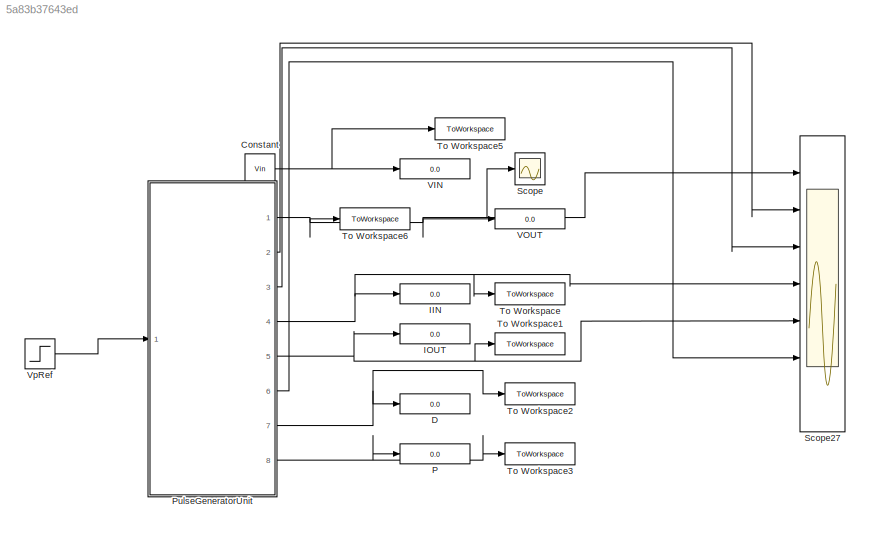
MODEL slx_5a83b37643ed
KIND model
CONFIG AbsTol = 1e-3
CONFIG EnableMultiTasking = on
CONFIG FixedStep = auto
CONFIG MaxStep = 1e-5
CONFIG MinStep = auto
CONFIG RelTol = 1e-3
CONFIG SampleTimeConstraint = Unconstrained
CONFIG SolverName = ode23tb
CONFIG StartTime = 0.0
CONFIG StopTime = Ts
BLOCK [Constant] Constant
  Value = Vin
BLOCK [Display] D
  Decimation = 1
  Ports = [1]
BLOCK [Display] IIN
  Decimation = 1
  Ports = [1]
BLOCK [Display] IOUT
  Decimation = 1
  Ports = [1]
BLOCK [Display] P
  Decimation = 1
  Ports = [1]
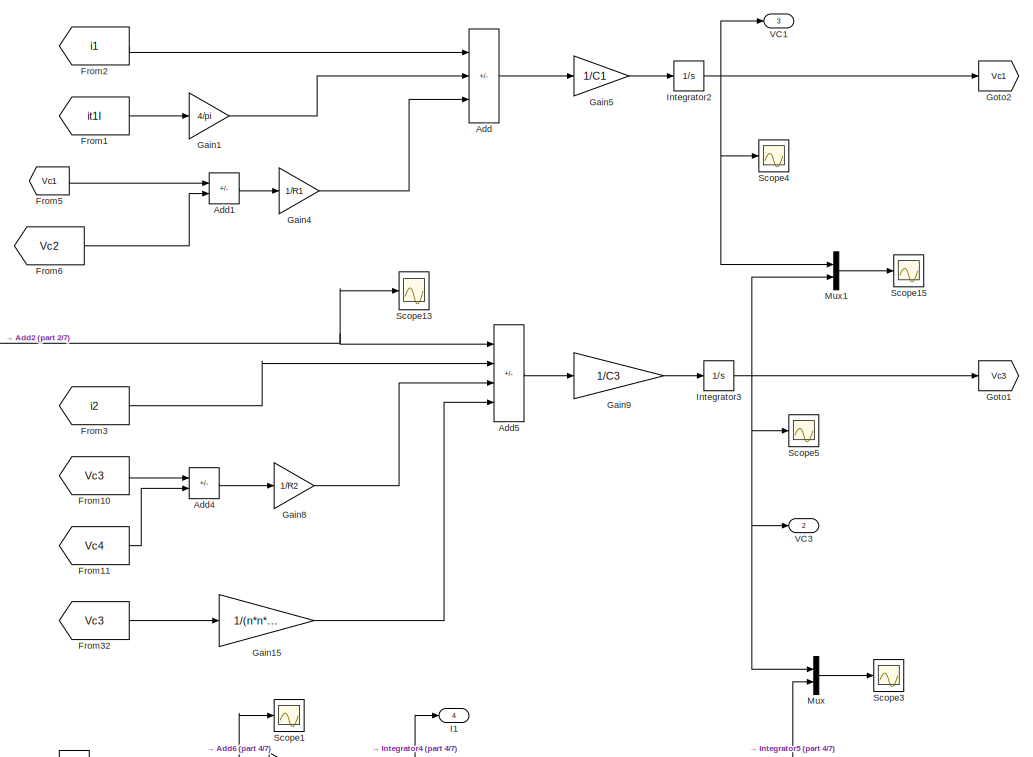
[diagram: PulseGeneratorUnit - part 1/7, top right region]
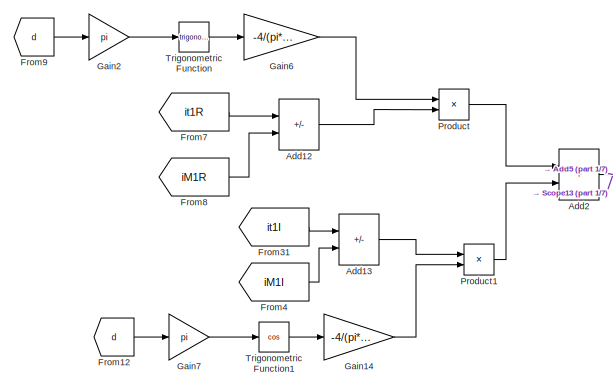
[diagram: PulseGeneratorUnit - part 2/7, top center region]
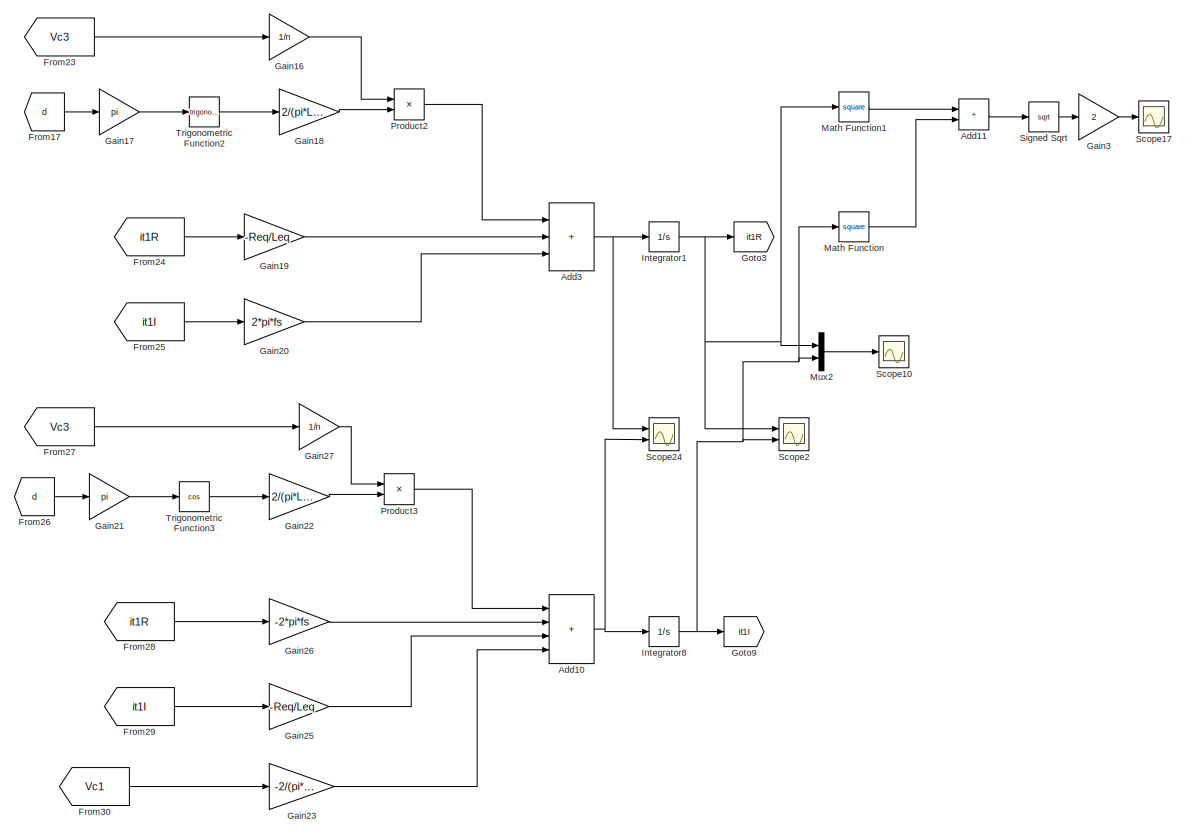
[diagram: PulseGeneratorUnit - part 3/7, middle left region]
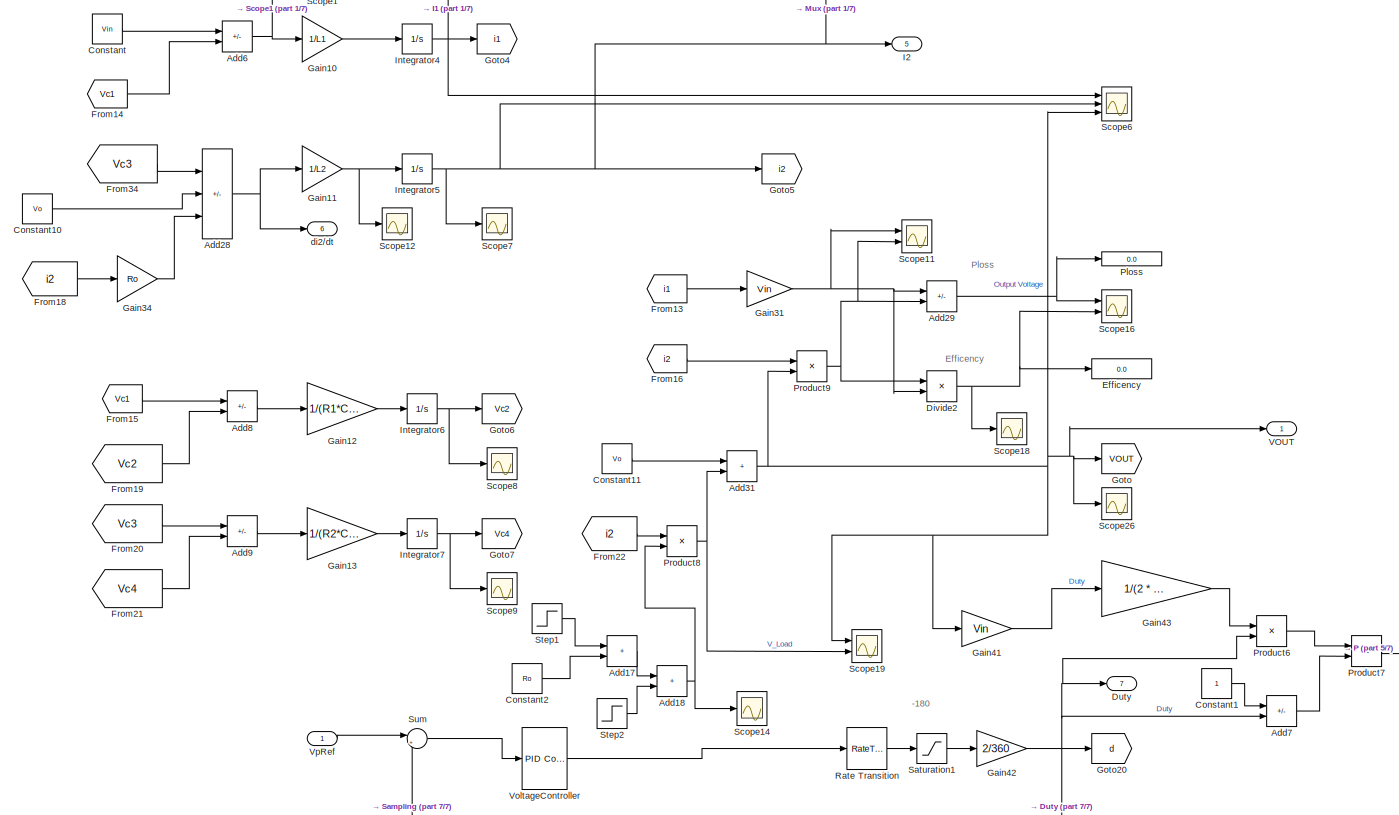
[diagram: PulseGeneratorUnit - part 4/7, middle right region]
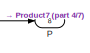
[diagram: PulseGeneratorUnit - part 5/7, bottom right region]
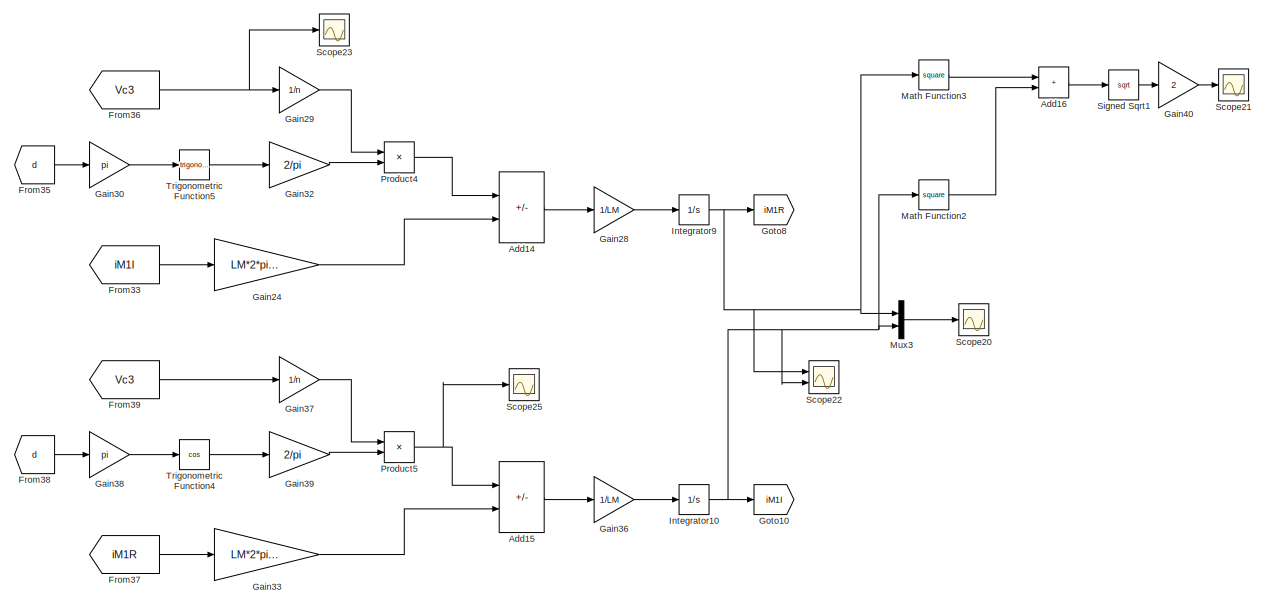
[diagram: PulseGeneratorUnit - part 6/7, bottom left region]
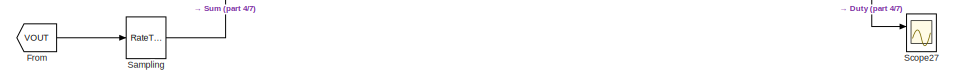
[diagram: PulseGeneratorUnit - part 7/7, bottom right region]
BLOCK [SubSystem] PulseGeneratorUnit
  Ports = [1, 8]
  RequestExecContextInheritance = off
BLOCK [Sum] PulseGeneratorUnit/Add
  IconShape = rectangular
  Inputs = ++-
  Ports = [3, 1]
BLOCK [Sum] PulseGeneratorUnit/Add1
  IconShape = rectangular
  Inputs = +-
  Ports = [2, 1]
BLOCK [Sum] PulseGeneratorUnit/Add10
  IconShape = rectangular
  Inputs = ++++
  Ports = [4, 1]
BLOCK [Sum] PulseGeneratorUnit/Add11
  IconShape = rectangular
  Ports = [2, 1]
BLOCK [Sum] PulseGeneratorUnit/Add12
  IconShape = rectangular
  Inputs = +-
  Ports = [2, 1]
BLOCK [Sum] PulseGeneratorUnit/Add13
  IconShape = rectangular
  Inputs = +-
  Ports = [2, 1]
BLOCK [Sum] PulseGeneratorUnit/Add14
  IconShape = rectangular
  Inputs = -+
  Ports = [2, 1]
BLOCK [Sum] PulseGeneratorUnit/Add15
  IconShape = rectangular
  Inputs = --
  Ports = [2, 1]
BLOCK [Sum] PulseGeneratorUnit/Add16
  IconShape = rectangular
  Ports = [2, 1]
BLOCK [Sum] PulseGeneratorUnit/Add17
  IconShape = rectangular
  Ports = [2, 1]
BLOCK [Sum] PulseGeneratorUnit/Add18
  IconShape = rectangular
  Ports = [2, 1]
BLOCK [Sum] PulseGeneratorUnit/Add2
  IconShape = rectangular
  Ports = [2, 1]
BLOCK [Sum] PulseGeneratorUnit/Add28
  IconShape = rectangular
  Inputs = +--
  Ports = [3, 1]
BLOCK [Sum] PulseGeneratorUnit/Add29
  IconShape = rectangular
  Inputs = +-
  Ports = [2, 1]
BLOCK [Sum] PulseGeneratorUnit/Add3
  IconShape = rectangular
  Inputs = +++
  Ports = [3, 1]
BLOCK [Sum] PulseGeneratorUnit/Add31
  IconShape = rectangular
  Ports = [2, 1]
BLOCK [Sum] PulseGeneratorUnit/Add4
  IconShape = rectangular
  Inputs = +-
  Ports = [2, 1]
BLOCK [Sum] PulseGeneratorUnit/Add5
  IconShape = rectangular
  Inputs = +---
  Ports = [4, 1]
BLOCK [Sum] PulseGeneratorUnit/Add6
  IconShape = rectangular
  Inputs = +-
  Ports = [2, 1]
BLOCK [Sum] PulseGeneratorUnit/Add7
  IconShape = rectangular
  Inputs = +-
  Ports = [2, 1]
BLOCK [Sum] PulseGeneratorUnit/Add8
  IconShape = rectangular
  Inputs = +-
  Ports = [2, 1]
BLOCK [Sum] PulseGeneratorUnit/Add9
  IconShape = rectangular
  Inputs = +-
  Ports = [2, 1]
BLOCK [Constant] PulseGeneratorUnit/Constant
  Value = Vin
BLOCK [Constant] PulseGeneratorUnit/Constant1
BLOCK [Constant] PulseGeneratorUnit/Constant10
  Value = Vo
BLOCK [Constant] PulseGeneratorUnit/Constant11
  Value = Vo
BLOCK [Constant] PulseGeneratorUnit/Constant2
  Value = Ro
BLOCK [Product] PulseGeneratorUnit/Divide2
  Inputs = */
  Ports = [2, 1]
BLOCK [Outport] PulseGeneratorUnit/Duty
  Port = 7
BLOCK [Display] PulseGeneratorUnit/Efficency
  Decimation = 1
  Ports = [1]
BLOCK [From] PulseGeneratorUnit/From
  GotoTag = VOUT
  TagVisibility = global
BLOCK [From] PulseGeneratorUnit/From1
  GotoTag = it1I
BLOCK [From] PulseGeneratorUnit/From10
  GotoTag = Vc3
BLOCK [From] PulseGeneratorUnit/From11
  GotoTag = Vc4
BLOCK [From] PulseGeneratorUnit/From12
  GotoTag = d
BLOCK [From] PulseGeneratorUnit/From13
  GotoTag = i1
BLOCK [From] PulseGeneratorUnit/From14
  GotoTag = Vc1
BLOCK [From] PulseGeneratorUnit/From15
  GotoTag = Vc1
BLOCK [From] PulseGeneratorUnit/From16
  GotoTag = i2
BLOCK [From] PulseGeneratorUnit/From17
  GotoTag = d
BLOCK [From] PulseGeneratorUnit/From18
  GotoTag = i2
BLOCK [From] PulseGeneratorUnit/From19
  GotoTag = Vc2
BLOCK [From] PulseGeneratorUnit/From2
  GotoTag = i1
BLOCK [From] PulseGeneratorUnit/From20
  GotoTag = Vc3
BLOCK [From] PulseGeneratorUnit/From21
  GotoTag = Vc4
BLOCK [From] PulseGeneratorUnit/From22
  GotoTag = i2
BLOCK [From] PulseGeneratorUnit/From23
  GotoTag = Vc3
BLOCK [From] PulseGeneratorUnit/From24
  GotoTag = it1R
BLOCK [From] PulseGeneratorUnit/From25
  GotoTag = it1I
BLOCK [From] PulseGeneratorUnit/From26
  GotoTag = d
BLOCK [From] PulseGeneratorUnit/From27
  GotoTag = Vc3
BLOCK [From] PulseGeneratorUnit/From28
  GotoTag = it1R
BLOCK [From] PulseGeneratorUnit/From29
  GotoTag = it1I
BLOCK [From] PulseGeneratorUnit/From3
  GotoTag = i2
BLOCK [From] PulseGeneratorUnit/From30
  GotoTag = Vc1
BLOCK [From] PulseGeneratorUnit/From31
  GotoTag = it1I
BLOCK [From] PulseGeneratorUnit/From32
  GotoTag = Vc3
BLOCK [From] PulseGeneratorUnit/From33
  GotoTag = iM1I
BLOCK [From] PulseGeneratorUnit/From34
  GotoTag = Vc3
BLOCK [From] PulseGeneratorUnit/From35
  GotoTag = d
BLOCK [From] PulseGeneratorUnit/From36
  GotoTag = Vc3
BLOCK [From] PulseGeneratorUnit/From37
  GotoTag = iM1R
BLOCK [From] PulseGeneratorUnit/From38
  GotoTag = d
BLOCK [From] PulseGeneratorUnit/From39
  GotoTag = Vc3
BLOCK [From] PulseGeneratorUnit/From4
  GotoTag = iM1I
BLOCK [From] PulseGeneratorUnit/From5
  GotoTag = Vc1
BLOCK [From] PulseGeneratorUnit/From6
  GotoTag = Vc2
BLOCK [From] PulseGeneratorUnit/From7
  GotoTag = it1R
BLOCK [From] PulseGeneratorUnit/From8
  GotoTag = iM1R
BLOCK [From] PulseGeneratorUnit/From9
  GotoTag = d
BLOCK [Gain] PulseGeneratorUnit/Gain1
  Gain = 4/pi
BLOCK [Gain] PulseGeneratorUnit/Gain10
  Gain = 1/L1
BLOCK [Gain] PulseGeneratorUnit/Gain11
  Gain = 1/L2
BLOCK [Gain] PulseGeneratorUnit/Gain12
  Gain = 1/(R1*C2)
BLOCK [Gain] PulseGeneratorUnit/Gain13
  Gain = 1/(R2*C4)
BLOCK [Gain] PulseGeneratorUnit/Gain14
  Gain = -4/(pi*n)
BLOCK [Gain] PulseGeneratorUnit/Gain15
  Gain = 1/(n*n*RM)
BLOCK [Gain] PulseGeneratorUnit/Gain16
  Gain = 1/n
BLOCK [Gain] PulseGeneratorUnit/Gain17
  Gain = pi
BLOCK [Gain] PulseGeneratorUnit/Gain18
  Gain = 2/(pi*Leq)
BLOCK [Gain] PulseGeneratorUnit/Gain19
  Gain = -Req/Leq
BLOCK [Gain] PulseGeneratorUnit/Gain2
  Gain = pi
BLOCK [Gain] PulseGeneratorUnit/Gain20
  Gain = 2*pi*fs
BLOCK [Gain] PulseGeneratorUnit/Gain21
  Gain = pi
BLOCK [Gain] PulseGeneratorUnit/Gain22
  Gain = 2/(pi*Leq)
BLOCK [Gain] PulseGeneratorUnit/Gain23
  Gain = -2/(pi*Leq)
BLOCK [Gain] PulseGeneratorUnit/Gain24
  Gain = LM*2*pi*fs
BLOCK [Gain] PulseGeneratorUnit/Gain25
  Gain = -Req/Leq
BLOCK [Gain] PulseGeneratorUnit/Gain26
  Gain = -2*pi*fs
BLOCK [Gain] PulseGeneratorUnit/Gain27
  Gain = 1/n
BLOCK [Gain] PulseGeneratorUnit/Gain28
  Gain = 1/LM
BLOCK [Gain] PulseGeneratorUnit/Gain29
  Gain = 1/n
BLOCK [Gain] PulseGeneratorUnit/Gain3
  Gain = 2
BLOCK [Gain] PulseGeneratorUnit/Gain30
  Gain = pi
BLOCK [Gain] PulseGeneratorUnit/Gain31
  Gain = Vin
BLOCK [Gain] PulseGeneratorUnit/Gain32
  Gain = 2/pi
BLOCK [Gain] PulseGeneratorUnit/Gain33
  Gain = LM*2*pi*fs
BLOCK [Gain] PulseGeneratorUnit/Gain34
  Gain = Ro
BLOCK [Gain] PulseGeneratorUnit/Gain36
  Gain = 1/LM
BLOCK [Gain] PulseGeneratorUnit/Gain37
  Gain = 1/n
BLOCK [Gain] PulseGeneratorUnit/Gain38
  Gain = pi
BLOCK [Gain] PulseGeneratorUnit/Gain39
  Gain = 2/pi
BLOCK [Gain] PulseGeneratorUnit/Gain4
  Gain = 1/R1
BLOCK [Gain] PulseGeneratorUnit/Gain40
  Gain = 2
BLOCK [Gain] PulseGeneratorUnit/Gain41
  Gain = Vin
BLOCK [Gain] PulseGeneratorUnit/Gain42
  Gain = 2/360
BLOCK [Gain] PulseGeneratorUnit/Gain43
  Gain = 1/(2 * n * fs * Leq)
BLOCK [Gain] PulseGeneratorUnit/Gain5
  Gain = 1/C1
BLOCK [Gain] PulseGeneratorUnit/Gain6
  Gain = -4/(pi*n)
BLOCK [Gain] PulseGeneratorUnit/Gain7
  Gain = pi
BLOCK [Gain] PulseGeneratorUnit/Gain8
  Gain = 1/R2
BLOCK [Gain] PulseGeneratorUnit/Gain9
  Gain = 1/C3
BLOCK [Goto] PulseGeneratorUnit/Goto
  GotoTag = VOUT
  TagVisibility = global
BLOCK [Goto] PulseGeneratorUnit/Goto1
  GotoTag = Vc3
BLOCK [Goto] PulseGeneratorUnit/Goto10
  GotoTag = iM1I
BLOCK [Goto] PulseGeneratorUnit/Goto2
  GotoTag = Vc1
BLOCK [Goto] PulseGeneratorUnit/Goto20
  GotoTag = d
BLOCK [Goto] PulseGeneratorUnit/Goto3
  GotoTag = it1R
BLOCK [Goto] PulseGeneratorUnit/Goto4
  GotoTag = i1
BLOCK [Goto] PulseGeneratorUnit/Goto5
  GotoTag = i2
BLOCK [Goto] PulseGeneratorUnit/Goto6
  GotoTag = Vc2
BLOCK [Goto] PulseGeneratorUnit/Goto7
  GotoTag = Vc4
BLOCK [Goto] PulseGeneratorUnit/Goto8
  GotoTag = iM1R
BLOCK [Goto] PulseGeneratorUnit/Goto9
  GotoTag = it1I
BLOCK [Outport] PulseGeneratorUnit/I1
  Port = 4
BLOCK [Outport] PulseGeneratorUnit/I2
  Port = 5
BLOCK [Integrator] PulseGeneratorUnit/Integrator1
  Ports = [1, 1]
BLOCK [Integrator] PulseGeneratorUnit/Integrator10
  Ports = [1, 1]
BLOCK [Integrator] PulseGeneratorUnit/Integrator2
  InitialCondition = Vin
  Ports = [1, 1]
BLOCK [Integrator] PulseGeneratorUnit/Integrator3
  InitialCondition = Vo
  Ports = [1, 1]
BLOCK [Integrator] PulseGeneratorUnit/Integrator4
  Ports = [1, 1]
BLOCK [Integrator] PulseGeneratorUnit/Integrator5
  Ports = [1, 1]
BLOCK [Integrator] PulseGeneratorUnit/Integrator6
  InitialCondition = Vin
  Ports = [1, 1]
BLOCK [Integrator] PulseGeneratorUnit/Integrator7
  InitialCondition = Vo
  Ports = [1, 1]
BLOCK [Integrator] PulseGeneratorUnit/Integrator8
  Ports = [1, 1]
BLOCK [Integrator] PulseGeneratorUnit/Integrator9
  Ports = [1, 1]
BLOCK [Math] PulseGeneratorUnit/Math Function
  Operator = square
  Ports = [1, 1]
  SignedPower = on
BLOCK [Math] PulseGeneratorUnit/Math Function1
  Operator = square
  Ports = [1, 1]
  SignedPower = on
BLOCK [Math] PulseGeneratorUnit/Math Function2
  Operator = square
  Ports = [1, 1]
  SignedPower = on
BLOCK [Math] PulseGeneratorUnit/Math Function3
  Operator = square
  Ports = [1, 1]
  SignedPower = on
BLOCK [Mux] PulseGeneratorUnit/Mux
  DisplayOption = bar
  Inputs = 2
  Ports = [2, 1]
BLOCK [Mux] PulseGeneratorUnit/Mux1
  DisplayOption = bar
  Inputs = 2
  Ports = [2, 1]
BLOCK [Mux] PulseGeneratorUnit/Mux2
  DisplayOption = bar
  Inputs = 2
  Ports = [2, 1]
BLOCK [Mux] PulseGeneratorUnit/Mux3
  DisplayOption = bar
  Inputs = 2
  Ports = [2, 1]
BLOCK [Outport] PulseGeneratorUnit/P
  Port = 8
BLOCK [Display] PulseGeneratorUnit/Ploss
  Decimation = 1
  Ports = [1]
BLOCK [Product] PulseGeneratorUnit/Product
  Ports = [2, 1]
  RndMeth = Zero
BLOCK [Product] PulseGeneratorUnit/Product1
  Ports = [2, 1]
  RndMeth = Zero
BLOCK [Product] PulseGeneratorUnit/Product2
  Ports = [2, 1]
  RndMeth = Zero
BLOCK [Product] PulseGeneratorUnit/Product3
  Ports = [2, 1]
  RndMeth = Zero
BLOCK [Product] PulseGeneratorUnit/Product4
  Ports = [2, 1]
  RndMeth = Zero
BLOCK [Product] PulseGeneratorUnit/Product5
  Ports = [2, 1]
  RndMeth = Zero
BLOCK [Product] PulseGeneratorUnit/Product6
  Ports = [2, 1]
  RndMeth = Zero
BLOCK [Product] PulseGeneratorUnit/Product7
  Ports = [2, 1]
  RndMeth = Zero
BLOCK [Product] PulseGeneratorUnit/Product8
  Ports = [2, 1]
  RndMeth = Zero
BLOCK [Product] PulseGeneratorUnit/Product9
  Ports = [2, 1]
  RndMeth = Zero
BLOCK [RateTransition] PulseGeneratorUnit/Rate Transition
BLOCK [RateTransition] PulseGeneratorUnit/Sampling
BLOCK [Saturate] PulseGeneratorUnit/Saturation1
  LowerLimit = -180
  UpperLimit = 180
BLOCK [Scope] PulseGeneratorUnit/Scope1
  Floating = off
  NumInputPorts = 1
  Ports = [1]
  ScopeSpecificationString = Simulink.scopes.TimeScopeBlockCfg('CurrentConfiguration', extmgr.ConfigurationSet(extmgr.Configuration('Core','General UI',true),extmgr.Configuration('Core','Source UI',true),extmgr.Configuration('Sources','WiredSimulink',true,'DataLoggingSaveFormat','StructureWithTime','DataLoggingDecimation','1','DataLoggingDecimateData',true,'DataLoggingVariableName','ScopeData2'),extmgr.Configuration('Visuals'...<+876ch>
BLOCK [Scope] PulseGeneratorUnit/Scope10
  Floating = off
  NumInputPorts = 1
  Ports = [1]
  ScopeSpecificationString = Simulink.scopes.TimeScopeBlockCfg('CurrentConfiguration', extmgr.ConfigurationSet(extmgr.Configuration('Core','General UI',true),extmgr.Configuration('Core','Source UI',true),extmgr.Configuration('Sources','WiredSimulink',true,'DataLoggingVariableName','ScopeData4','DataLoggingSaveFormat','StructureWithTime','DataLoggingDecimation','1','DataLoggingDecimateData',true),extmgr.Configuration('Visuals'...<+877ch>
BLOCK [Scope] PulseGeneratorUnit/Scope11
  Floating = off
  NumInputPorts = 2
  Ports = [2]
  ScopeSpecificationString = Simulink.scopes.TimeScopeBlockCfg('CurrentConfiguration', extmgr.ConfigurationSet(extmgr.Configuration('Core','General UI',true),extmgr.Configuration('Core','Source UI',true),extmgr.Configuration('Sources','WiredSimulink',true,'DataLoggingVariableName','ScopeData5','DataLoggingSaveFormat','StructureWithTime','DataLoggingDecimation','1','DataLoggingDecimateData',true),extmgr.Configuration('Visuals'...<+2326ch>
BLOCK [Scope] PulseGeneratorUnit/Scope12
  Floating = off
  NumInputPorts = 1
  Ports = [1]
  ScopeSpecificationString = Simulink.scopes.TimeScopeBlockCfg('CurrentConfiguration', extmgr.ConfigurationSet(extmgr.Configuration('Core','General UI',true),extmgr.Configuration('Core','Source UI',true),extmgr.Configuration('Sources','WiredSimulink',true,'DataLoggingVariableName','ScopeData6','DataLoggingSaveFormat','StructureWithTime','DataLoggingDecimation','1','DataLoggingDecimateData',true),extmgr.Configuration('Visuals'...<+1683ch>
BLOCK [Scope] PulseGeneratorUnit/Scope13
  Floating = off
  NumInputPorts = 1
  Ports = [1]
  ScopeSpecificationString = Simulink.scopes.TimeScopeBlockCfg('CurrentConfiguration', extmgr.ConfigurationSet(extmgr.Configuration('Core','General UI',true),extmgr.Configuration('Core','Source UI',true),extmgr.Configuration('Sources','WiredSimulink',true,'DataLoggingVariableName','ScopeData7','DataLoggingSaveFormat','StructureWithTime','DataLoggingDecimation','1','DataLoggingDecimateData',true),extmgr.Configuration('Visuals'...<+876ch>
BLOCK [Scope] PulseGeneratorUnit/Scope14
  Floating = off
  NumInputPorts = 1
  Ports = [1]
  ScopeSpecificationString = Simulink.scopes.TimeScopeBlockCfg('CurrentConfiguration', extmgr.ConfigurationSet(extmgr.Configuration('Core','General UI',true),extmgr.Configuration('Core','Source UI',true),extmgr.Configuration('Sources','WiredSimulink',true,'DataLoggingVariableName','ScopeData1','DataLoggingSaveFormat','StructureWithTime','DataLoggingDecimation','1','DataLoggingDecimateData',true),extmgr.Configuration('Visuals'...<+2025ch>
BLOCK [Scope] PulseGeneratorUnit/Scope15
  Floating = off
  NumInputPorts = 1
  Ports = [1]
  ScopeSpecificationString = Simulink.scopes.TimeScopeBlockCfg('CurrentConfiguration', extmgr.ConfigurationSet(extmgr.Configuration('Core','General UI',true),extmgr.Configuration('Core','Source UI',true),extmgr.Configuration('Sources','WiredSimulink',true,'DataLoggingVariableName','ScopeData8','DataLoggingSaveFormat','StructureWithTime','DataLoggingDecimation','1','DataLoggingDecimateData',true),extmgr.Configuration('Visuals'...<+876ch>
BLOCK [Scope] PulseGeneratorUnit/Scope16
  Floating = off
  NumInputPorts = 2
  Ports = [2]
  ScopeSpecificationString = Simulink.scopes.TimeScopeBlockCfg('CurrentConfiguration', extmgr.ConfigurationSet(extmgr.Configuration('Core','General UI',true),extmgr.Configuration('Core','Source UI',true),extmgr.Configuration('Sources','WiredSimulink',true,'DataLoggingVariableName','ScopeData17','DataLoggingSaveFormat','StructureWithTime','DataLoggingDecimation','1','DataLoggingDecimateData',true),extmgr.Configuration('Visuals...<+2335ch>
BLOCK [Scope] PulseGeneratorUnit/Scope17
  Floating = off
  NumInputPorts = 1
  Ports = [1]
  ScopeSpecificationString = Simulink.scopes.TimeScopeBlockCfg('CurrentConfiguration', extmgr.ConfigurationSet(extmgr.Configuration('Core','General UI',true),extmgr.Configuration('Core','Source UI',true),extmgr.Configuration('Sources','WiredSimulink',true,'DataLoggingVariableName','ScopeData9','DataLoggingSaveFormat','StructureWithTime','DataLoggingDecimation','1','DataLoggingDecimateData',true),extmgr.Configuration('Visuals'...<+878ch>
BLOCK [Scope] PulseGeneratorUnit/Scope18
  Floating = off
  NumInputPorts = 1
  Ports = [1]
  ScopeSpecificationString = Simulink.scopes.TimeScopeBlockCfg('CurrentConfiguration', extmgr.ConfigurationSet(extmgr.Configuration('Core','General UI',true),extmgr.Configuration('Core','Source UI',true),extmgr.Configuration('Sources','WiredSimulink',true,'DataLoggingVariableName','ScopeData10','DataLoggingSaveFormat','StructureWithTime','DataLoggingDecimation','1','DataLoggingDecimateData',true),extmgr.Configuration('Visuals...<+1647ch>
BLOCK [Scope] PulseGeneratorUnit/Scope19
  Floating = off
  NumInputPorts = 2
  Ports = [2]
  ScopeSpecificationString = Simulink.scopes.TimeScopeBlockCfg('CurrentConfiguration', extmgr.ConfigurationSet(extmgr.Configuration('Core','General UI',true),extmgr.Configuration('Core','Source UI',true),extmgr.Configuration('Sources','WiredSimulink',true,'DataLoggingVariableName','ScopeData11','DataLoggingSaveFormat','StructureWithTime','DataLoggingDecimation','1','DataLoggingDecimateData',true),extmgr.Configuration('Visuals...<+2079ch>
BLOCK [Scope] PulseGeneratorUnit/Scope2
  Floating = off
  NumInputPorts = 2
  Ports = [2]
  ScopeSpecificationString = Simulink.scopes.TimeScopeBlockCfg('CurrentConfiguration', extmgr.ConfigurationSet(extmgr.Configuration('Core','General UI',true),extmgr.Configuration('Core','Source UI',true),extmgr.Configuration('Sources','WiredSimulink',true,'DataLoggingVariableName','ScopeData12','DataLoggingSaveFormat','StructureWithTime','DataLoggingDecimation','1','DataLoggingDecimateData',true),extmgr.Configuration('Visuals...<+2303ch>
BLOCK [Scope] PulseGeneratorUnit/Scope20
  Floating = off
  NumInputPorts = 1
  Ports = [1]
  ScopeSpecificationString = Simulink.scopes.TimeScopeBlockCfg('CurrentConfiguration', extmgr.ConfigurationSet(extmgr.Configuration('Core','General UI',true),extmgr.Configuration('Core','Source UI',true),extmgr.Configuration('Sources','WiredSimulink',true,'DataLoggingVariableName','ScopeData13','DataLoggingSaveFormat','StructureWithTime','DataLoggingDecimation','1','DataLoggingDecimateData',true),extmgr.Configuration('Visuals...<+878ch>
BLOCK [Scope] PulseGeneratorUnit/Scope21
  Floating = off
  NumInputPorts = 1
  Ports = [1]
  ScopeSpecificationString = Simulink.scopes.TimeScopeBlockCfg('CurrentConfiguration', extmgr.ConfigurationSet(extmgr.Configuration('Core','General UI',true),extmgr.Configuration('Core','Source UI',true),extmgr.Configuration('Sources','WiredSimulink',true,'DataLoggingVariableName','ScopeData14','DataLoggingSaveFormat','StructureWithTime','DataLoggingDecimation','1','DataLoggingDecimateData',true),extmgr.Configuration('Visuals...<+878ch>
BLOCK [Scope] PulseGeneratorUnit/Scope22
  Floating = off
  NumInputPorts = 2
  Ports = [2]
  ScopeSpecificationString = Simulink.scopes.TimeScopeBlockCfg('CurrentConfiguration', extmgr.ConfigurationSet(extmgr.Configuration('Core','General UI',true),extmgr.Configuration('Core','Source UI',true),extmgr.Configuration('Sources','WiredSimulink',true,'DataLoggingVariableName','ScopeData15','DataLoggingSaveFormat','StructureWithTime','DataLoggingDecimation','1','DataLoggingDecimateData',true),extmgr.Configuration('Visuals...<+2303ch>
BLOCK [Scope] PulseGeneratorUnit/Scope23
  Floating = off
  NumInputPorts = 1
  Ports = [1]
  ScopeSpecificationString = Simulink.scopes.TimeScopeBlockCfg('CurrentConfiguration', extmgr.ConfigurationSet(extmgr.Configuration('Core','General UI',true),extmgr.Configuration('Core','Source UI',true),extmgr.Configuration('Sources','WiredSimulink',true,'DataLoggingVariableName','ScopeData16','DataLoggingSaveFormat','StructureWithTime','DataLoggingDecimation','1','DataLoggingDecimateData',true),extmgr.Configuration('Visuals...<+1617ch>
BLOCK [Scope] PulseGeneratorUnit/Scope24
  Floating = off
  NumInputPorts = 2
  Ports = [2]
  ScopeSpecificationString = Simulink.scopes.TimeScopeBlockCfg('CurrentConfiguration', extmgr.ConfigurationSet(extmgr.Configuration('Core','General UI',true),extmgr.Configuration('Core','Source UI',true),extmgr.Configuration('Sources','WiredSimulink',true,'DataLoggingVariableName','ScopeData18','DataLoggingSaveFormat','StructureWithTime','DataLoggingDecimation','1','DataLoggingDecimateData',true),extmgr.Configuration('Visuals...<+2303ch>
BLOCK [Scope] PulseGeneratorUnit/Scope25
  Floating = off
  NumInputPorts = 1
  Ports = [1]
  ScopeSpecificationString = Simulink.scopes.TimeScopeBlockCfg('CurrentConfiguration', extmgr.ConfigurationSet(extmgr.Configuration('Core','General UI',true),extmgr.Configuration('Core','Source UI',true),extmgr.Configuration('Sources','WiredSimulink',true,'DataLoggingVariableName','ScopeData19','DataLoggingSaveFormat','StructureWithTime','DataLoggingDecimation','1','DataLoggingDecimateData',true),extmgr.Configuration('Visuals...<+878ch>
BLOCK [Scope] PulseGeneratorUnit/Scope26
  Floating = off
  NumInputPorts = 1
  Ports = [1]
  ScopeSpecificationString = Simulink.scopes.TimeScopeBlockCfg('CurrentConfiguration', extmgr.ConfigurationSet(extmgr.Configuration('Core','General UI',true),extmgr.Configuration('Core','Source UI',true),extmgr.Configuration('Sources','WiredSimulink',true,'DataLoggingVariableName','ScopeData2','DataLoggingSaveFormat','StructureWithTime','DataLoggingDecimation','1','DataLoggingDecimateData',true),extmgr.Configuration('Visuals'...<+1690ch>
BLOCK [Scope] PulseGeneratorUnit/Scope27
  Floating = off
  NumInputPorts = 2
  Ports = [2]
  ScopeSpecificationString = Simulink.scopes.TimeScopeBlockCfg('CurrentConfiguration', extmgr.ConfigurationSet(extmgr.Configuration('Core','General UI',true),extmgr.Configuration('Core','Source UI',true),extmgr.Configuration('Sources','WiredSimulink',true,'DataLoggingVariableName','ScopeData3','DataLoggingSaveFormat','StructureWithTime','DataLoggingDecimation','1','DataLoggingDecimateData',true),extmgr.Configuration('Visuals'...<+2332ch>
BLOCK [Scope] PulseGeneratorUnit/Scope3
  Floating = off
  NumInputPorts = 1
  Ports = [1]
  ScopeSpecificationString = Simulink.scopes.TimeScopeBlockCfg('CurrentConfiguration', extmgr.ConfigurationSet(extmgr.Configuration('Core','General UI',true),extmgr.Configuration('Core','Source UI',true),extmgr.Configuration('Sources','WiredSimulink',true,'DataLoggingVariableName','ScopeData20','DataLoggingSaveFormat','StructureWithTime','DataLoggingDecimation','1','DataLoggingDecimateData',true),extmgr.Configuration('Visuals...<+879ch>
BLOCK [Scope] PulseGeneratorUnit/Scope4
  Floating = off
  NumInputPorts = 1
  Ports = [1]
  ScopeSpecificationString = Simulink.scopes.TimeScopeBlockCfg('CurrentConfiguration', extmgr.ConfigurationSet(extmgr.Configuration('Core','General UI',true),extmgr.Configuration('Core','Source UI',true),extmgr.Configuration('Sources','WiredSimulink',true,'DataLoggingVariableName','ScopeData21','DataLoggingSaveFormat','StructureWithTime','DataLoggingDecimation','1','DataLoggingDecimateData',true),extmgr.Configuration('Visuals...<+1708ch>
BLOCK [Scope] PulseGeneratorUnit/Scope5
  Floating = off
  NumInputPorts = 1
  Ports = [1]
  ScopeSpecificationString = Simulink.scopes.TimeScopeBlockCfg('CurrentConfiguration', extmgr.ConfigurationSet(extmgr.Configuration('Core','General UI',true),extmgr.Configuration('Core','Source UI',true),extmgr.Configuration('Sources','WiredSimulink',true,'DataLoggingVariableName','ScopeData22','DataLoggingSaveFormat','StructureWithTime','DataLoggingDecimation','1','DataLoggingDecimateData',true),extmgr.Configuration('Visuals...<+1702ch>
BLOCK [Scope] PulseGeneratorUnit/Scope6
  Floating = off
  NumInputPorts = 3
  Ports = [3]
  ScopeSpecificationString = Simulink.scopes.TimeScopeBlockCfg('CurrentConfiguration', extmgr.ConfigurationSet(extmgr.Configuration('Core','General UI',true),extmgr.Configuration('Core','Source UI',true),extmgr.Configuration('Sources','WiredSimulink',true,'DataLoggingVariableName','ScopeData23','DataLoggingSaveFormat','StructureWithTime','DataLoggingDecimation','1','DataLoggingDecimateData',true),extmgr.Configuration('Visuals...<+3018ch>
BLOCK [Scope] PulseGeneratorUnit/Scope7
  Floating = off
  NumInputPorts = 1
  Ports = [1]
  ScopeSpecificationString = Simulink.scopes.TimeScopeBlockCfg('CurrentConfiguration', extmgr.ConfigurationSet(extmgr.Configuration('Core','General UI',true),extmgr.Configuration('Core','Source UI',true),extmgr.Configuration('Sources','WiredSimulink',true,'DataLoggingVariableName','ScopeData24','DataLoggingSaveFormat','StructureWithTime','DataLoggingDecimation','1','DataLoggingDecimateData',true),extmgr.Configuration('Visuals...<+1771ch>
BLOCK [Scope] PulseGeneratorUnit/Scope8
  Floating = off
  NumInputPorts = 1
  Ports = [1]
  ScopeSpecificationString = Simulink.scopes.TimeScopeBlockCfg('CurrentConfiguration', extmgr.ConfigurationSet(extmgr.Configuration('Core','General UI',true),extmgr.Configuration('Core','Source UI',true),extmgr.Configuration('Sources','WiredSimulink',true,'DataLoggingVariableName','ScopeData25','DataLoggingSaveFormat','StructureWithTime','DataLoggingDecimation','1','DataLoggingDecimateData',true),extmgr.Configuration('Visuals...<+878ch>
BLOCK [Scope] PulseGeneratorUnit/Scope9
  Floating = off
  NumInputPorts = 1
  Ports = [1]
  ScopeSpecificationString = Simulink.scopes.TimeScopeBlockCfg('CurrentConfiguration', extmgr.ConfigurationSet(extmgr.Configuration('Core','General UI',true),extmgr.Configuration('Core','Source UI',true),extmgr.Configuration('Sources','WiredSimulink',true,'DataLoggingSaveFormat','StructureWithTime','DataLoggingDecimation','1','DataLoggingDecimateData',true),extmgr.Configuration('Visuals','Time Domain',true,'DisplayPropertyDef...<+837ch>
BLOCK [Sqrt] PulseGeneratorUnit/Signed Sqrt
BLOCK [Sqrt] PulseGeneratorUnit/Signed Sqrt1
BLOCK [Step] PulseGeneratorUnit/Step1
  After = -4
  SampleTime = 0
  Time = 0.2
BLOCK [Step] PulseGeneratorUnit/Step2
  After = 8
  SampleTime = 0
  Time = 0.4
BLOCK [Sum] PulseGeneratorUnit/Sum
  Inputs = |+-
  Ports = [2, 1]
BLOCK [Trigonometry] PulseGeneratorUnit/Trigonometric Function
  Ports = [1, 1]
BLOCK [Trigonometry] PulseGeneratorUnit/Trigonometric Function1
  Operator = cos
  Ports = [1, 1]
BLOCK [Trigonometry] PulseGeneratorUnit/Trigonometric Function2
  Ports = [1, 1]
BLOCK [Trigonometry] PulseGeneratorUnit/Trigonometric Function3
  Operator = cos
  Ports = [1, 1]
BLOCK [Trigonometry] PulseGeneratorUnit/Trigonometric Function4
  Operator = cos
  Ports = [1, 1]
BLOCK [Trigonometry] PulseGeneratorUnit/Trigonometric Function5
  Ports = [1, 1]
BLOCK [Outport] PulseGeneratorUnit/VC1
  Port = 3
BLOCK [Outport] PulseGeneratorUnit/VC3
  Port = 2
BLOCK [Outport] PulseGeneratorUnit/VOUT
BLOCK [Reference] PulseGeneratorUnit/VoltageController  REF=slpidlib/PID Controller
  Ports = [1, 1]
  SourceBlock = slpidlib/PID Controller
  SourceProductBaseCode = SL
  SourceType = PID 1dof
BLOCK [Inport] PulseGeneratorUnit/VpRef
BLOCK [Outport] PulseGeneratorUnit/di2//dt
  Port = 6
BLOCK [Scope] Scope
  Floating = off
  NumInputPorts = 1
  Ports = [1]
  ScopeSpecificationString = Simulink.scopes.TimeScopeBlockCfg('CurrentConfiguration', extmgr.ConfigurationSet(extmgr.Configuration('Core','General UI',true),extmgr.Configuration('Core','Source UI',true),extmgr.Configuration('Sources','WiredSimulink',true,'DataLoggingVariableName','ScopeData1'),extmgr.Configuration('Visuals','Time Domain',true,'SerializedDisplays',{struct('MinYLimReal','-12.59331','MaxYLimReal','113.33978','Y...<+1806ch>
BLOCK [Scope] Scope27
  Floating = off
  NumInputPorts = 7
  Ports = [7]
  ScopeSpecificationString = Simulink.scopes.TimeScopeBlockCfg('CurrentConfiguration', extmgr.ConfigurationSet(extmgr.Configuration('Core','General UI',true),extmgr.Configuration('Core','Source UI',true),extmgr.Configuration('Sources','WiredSimulink',true,'DataLoggingVariableName','ScopeData26','DataLoggingSaveFormat','StructureWithTime','DataLoggingDecimation','1','DataLoggingDecimateData',true),extmgr.Configuration('Visuals...<+5894ch>
BLOCK [ToWorkspace] To Workspace
  Decimation = 2
  FixptAsFi = on
  MaxDataPoints = inf
  Ports = [1]
  SampleTime = -1
  SaveFormat = Timeseries
  VariableName = Iins
BLOCK [ToWorkspace] To Workspace1
  Decimation = 2
  FixptAsFi = on
  MaxDataPoints = inf
  Ports = [1]
  SampleTime = -1
  SaveFormat = Timeseries
  VariableName = Iouts
BLOCK [ToWorkspace] To Workspace2
  Decimation = 2
  FixptAsFi = on
  MaxDataPoints = inf
  Ports = [1]
  SampleTime = -1
  SaveFormat = Timeseries
  VariableName = Ds
BLOCK [ToWorkspace] To Workspace3
  Decimation = 2
  FixptAsFi = on
  MaxDataPoints = inf
  Ports = [1]
  SampleTime = -1
  SaveFormat = Timeseries
  VariableName = Ps
BLOCK [ToWorkspace] To Workspace5
  Decimation = 2
  FixptAsFi = on
  MaxDataPoints = inf
  Ports = [1]
  SampleTime = -1
  SaveFormat = Timeseries
  VariableName = Vins
BLOCK [ToWorkspace] To Workspace6
  Decimation = 2
  FixptAsFi = on
  MaxDataPoints = inf
  Ports = [1]
  SampleTime = -1
  SaveFormat = Timeseries
  VariableName = Vouts
BLOCK [Display] VIN
  Decimation = 1
  Ports = [1]
BLOCK [Display] VOUT
  Decimation = 1
  Ports = [1]
BLOCK [Step] VpRef
  After = Vout
  Before = Vout
  SampleTime = 0
  Time = 1/100000*10000/2
ANNOTATION PulseGeneratorUnit: -180
ANNOTATION PulseGeneratorUnit: Efficency
ANNOTATION PulseGeneratorUnit: Ploss
NET Constant:1 -> To Workspace5:1, VIN:1
NET PulseGeneratorUnit/Add10:1 -> PulseGeneratorUnit/Integrator8:1, PulseGeneratorUnit/Scope24:2
LINE PulseGeneratorUnit/Add11:1 -> PulseGeneratorUnit/Signed Sqrt:1
LINE PulseGeneratorUnit/Add12:1 -> PulseGeneratorUnit/Product:2
LINE PulseGeneratorUnit/Add13:1 -> PulseGeneratorUnit/Product1:1
LINE PulseGeneratorUnit/Add14:1 -> PulseGeneratorUnit/Gain28:1
LINE PulseGeneratorUnit/Add15:1 -> PulseGeneratorUnit/Gain36:1
LINE PulseGeneratorUnit/Add16:1 -> PulseGeneratorUnit/Signed Sqrt1:1
LINE PulseGeneratorUnit/Add17:1 -> PulseGeneratorUnit/Add18:1
NET PulseGeneratorUnit/Add18:1 -> PulseGeneratorUnit/Product8:2, PulseGeneratorUnit/Scope14:1
LINE PulseGeneratorUnit/Add1:1 -> PulseGeneratorUnit/Gain4:1
NET PulseGeneratorUnit/Add28:1 -> PulseGeneratorUnit/Gain11:1, PulseGeneratorUnit/di2//dt:1
NET PulseGeneratorUnit/Add29:1 -> PulseGeneratorUnit/Ploss:1, PulseGeneratorUnit/Scope16:1
NET PulseGeneratorUnit/Add2:1 -> PulseGeneratorUnit/Add5:1, PulseGeneratorUnit/Scope13:1
NET PulseGeneratorUnit/Add31:1 -> PulseGeneratorUnit/Gain41:1, PulseGeneratorUnit/Goto:1, PulseGeneratorUnit/Product9:2, PulseGeneratorUnit/Scope19:1, PulseGeneratorUnit/Scope26:1, PulseGeneratorUnit/Scope6:3, PulseGeneratorUnit/VOUT:1
NET PulseGeneratorUnit/Add3:1 -> PulseGeneratorUnit/Integrator1:1, PulseGeneratorUnit/Scope24:1
LINE PulseGeneratorUnit/Add4:1 -> PulseGeneratorUnit/Gain8:1
LINE PulseGeneratorUnit/Add5:1 -> PulseGeneratorUnit/Gain9:1
NET PulseGeneratorUnit/Add6:1 -> PulseGeneratorUnit/Gain10:1, PulseGeneratorUnit/Scope1:1
LINE PulseGeneratorUnit/Add7:1 -> PulseGeneratorUnit/Product7:2
LINE PulseGeneratorUnit/Add8:1 -> PulseGeneratorUnit/Gain12:1
LINE PulseGeneratorUnit/Add9:1 -> PulseGeneratorUnit/Gain13:1
LINE PulseGeneratorUnit/Add:1 -> PulseGeneratorUnit/Gain5:1
LINE PulseGeneratorUnit/Constant10:1 -> PulseGeneratorUnit/Add28:2
LINE PulseGeneratorUnit/Constant11:1 -> PulseGeneratorUnit/Add31:1
LINE PulseGeneratorUnit/Constant1:1 -> PulseGeneratorUnit/Add7:1
LINE PulseGeneratorUnit/Constant2:1 -> PulseGeneratorUnit/Add17:2
LINE PulseGeneratorUnit/Constant:1 -> PulseGeneratorUnit/Add6:1
NET PulseGeneratorUnit/Divide2:1 -> PulseGeneratorUnit/Efficency:1, PulseGeneratorUnit/Scope16:2, PulseGeneratorUnit/Scope18:1
LINE PulseGeneratorUnit/From10:1 -> PulseGeneratorUnit/Add4:1
LINE PulseGeneratorUnit/From11:1 -> PulseGeneratorUnit/Add4:2
LINE PulseGeneratorUnit/From12:1 -> PulseGeneratorUnit/Gain7:1
LINE PulseGeneratorUnit/From13:1 -> PulseGeneratorUnit/Gain31:1
LINE PulseGeneratorUnit/From14:1 -> PulseGeneratorUnit/Add6:2
LINE PulseGeneratorUnit/From15:1 -> PulseGeneratorUnit/Add8:1
LINE PulseGeneratorUnit/From16:1 -> PulseGeneratorUnit/Product9:1
LINE PulseGeneratorUnit/From17:1 -> PulseGeneratorUnit/Gain17:1
LINE PulseGeneratorUnit/From18:1 -> PulseGeneratorUnit/Gain34:1
LINE PulseGeneratorUnit/From19:1 -> PulseGeneratorUnit/Add8:2
LINE PulseGeneratorUnit/From1:1 -> PulseGeneratorUnit/Gain1:1
LINE PulseGeneratorUnit/From20:1 -> PulseGeneratorUnit/Add9:1
LINE PulseGeneratorUnit/From21:1 -> PulseGeneratorUnit/Add9:2
LINE PulseGeneratorUnit/From22:1 -> PulseGeneratorUnit/Product8:1
LINE PulseGeneratorUnit/From23:1 -> PulseGeneratorUnit/Gain16:1
LINE PulseGeneratorUnit/From24:1 -> PulseGeneratorUnit/Gain19:1
LINE PulseGeneratorUnit/From25:1 -> PulseGeneratorUnit/Gain20:1
LINE PulseGeneratorUnit/From26:1 -> PulseGeneratorUnit/Gain21:1
LINE PulseGeneratorUnit/From27:1 -> PulseGeneratorUnit/Gain27:1
LINE PulseGeneratorUnit/From28:1 -> PulseGeneratorUnit/Gain26:1
LINE PulseGeneratorUnit/From29:1 -> PulseGeneratorUnit/Gain25:1
LINE PulseGeneratorUnit/From2:1 -> PulseGeneratorUnit/Add:1
LINE PulseGeneratorUnit/From30:1 -> PulseGeneratorUnit/Gain23:1
LINE PulseGeneratorUnit/From31:1 -> PulseGeneratorUnit/Add13:1
LINE PulseGeneratorUnit/From32:1 -> PulseGeneratorUnit/Gain15:1
LINE PulseGeneratorUnit/From33:1 -> PulseGeneratorUnit/Gain24:1
LINE PulseGeneratorUnit/From34:1 -> PulseGeneratorUnit/Add28:1
LINE PulseGeneratorUnit/From35:1 -> PulseGeneratorUnit/Gain30:1
NET PulseGeneratorUnit/From36:1 -> PulseGeneratorUnit/Gain29:1, PulseGeneratorUnit/Scope23:1
LINE PulseGeneratorUnit/From37:1 -> PulseGeneratorUnit/Gain33:1
LINE PulseGeneratorUnit/From38:1 -> PulseGeneratorUnit/Gain38:1
LINE PulseGeneratorUnit/From39:1 -> PulseGeneratorUnit/Gain37:1
LINE PulseGeneratorUnit/From3:1 -> PulseGeneratorUnit/Add5:2
LINE PulseGeneratorUnit/From4:1 -> PulseGeneratorUnit/Add13:2
LINE PulseGeneratorUnit/From5:1 -> PulseGeneratorUnit/Add1:1
LINE PulseGeneratorUnit/From6:1 -> PulseGeneratorUnit/Add1:2
LINE PulseGeneratorUnit/From7:1 -> PulseGeneratorUnit/Add12:1
LINE PulseGeneratorUnit/From8:1 -> PulseGeneratorUnit/Add12:2
LINE PulseGeneratorUnit/From9:1 -> PulseGeneratorUnit/Gain2:1
LINE PulseGeneratorUnit/From:1 -> PulseGeneratorUnit/Sampling:1
LINE PulseGeneratorUnit/Gain10:1 -> PulseGeneratorUnit/Integrator4:1
NET PulseGeneratorUnit/Gain11:1 -> PulseGeneratorUnit/Integrator5:1, PulseGeneratorUnit/Scope12:1
LINE PulseGeneratorUnit/Gain12:1 -> PulseGeneratorUnit/Integrator6:1
LINE PulseGeneratorUnit/Gain13:1 -> PulseGeneratorUnit/Integrator7:1
LINE PulseGeneratorUnit/Gain14:1 -> PulseGeneratorUnit/Product1:2
LINE PulseGeneratorUnit/Gain15:1 -> PulseGeneratorUnit/Add5:4
LINE PulseGeneratorUnit/Gain16:1 -> PulseGeneratorUnit/Product2:1
LINE PulseGeneratorUnit/Gain17:1 -> PulseGeneratorUnit/Trigonometric Function2:1
LINE PulseGeneratorUnit/Gain18:1 -> PulseGeneratorUnit/Product2:2
LINE PulseGeneratorUnit/Gain19:1 -> PulseGeneratorUnit/Add3:2
LINE PulseGeneratorUnit/Gain1:1 -> PulseGeneratorUnit/Add:2
LINE PulseGeneratorUnit/Gain20:1 -> PulseGeneratorUnit/Add3:3
LINE PulseGeneratorUnit/Gain21:1 -> PulseGeneratorUnit/Trigonometric Function3:1
LINE PulseGeneratorUnit/Gain22:1 -> PulseGeneratorUnit/Product3:2
LINE PulseGeneratorUnit/Gain23:1 -> PulseGeneratorUnit/Add10:4
LINE PulseGeneratorUnit/Gain24:1 -> PulseGeneratorUnit/Add14:2
LINE PulseGeneratorUnit/Gain25:1 -> PulseGeneratorUnit/Add10:3
LINE PulseGeneratorUnit/Gain26:1 -> PulseGeneratorUnit/Add10:2
LINE PulseGeneratorUnit/Gain27:1 -> PulseGeneratorUnit/Product3:1
LINE PulseGeneratorUnit/Gain28:1 -> PulseGeneratorUnit/Integrator9:1
LINE PulseGeneratorUnit/Gain29:1 -> PulseGeneratorUnit/Product4:1
LINE PulseGeneratorUnit/Gain2:1 -> PulseGeneratorUnit/Trigonometric Function:1
LINE PulseGeneratorUnit/Gain30:1 -> PulseGeneratorUnit/Trigonometric Function5:1
NET PulseGeneratorUnit/Gain31:1 -> PulseGeneratorUnit/Add29:1, PulseGeneratorUnit/Divide2:2, PulseGeneratorUnit/Scope11:1
LINE PulseGeneratorUnit/Gain32:1 -> PulseGeneratorUnit/Product4:2
LINE PulseGeneratorUnit/Gain33:1 -> PulseGeneratorUnit/Add15:2
LINE PulseGeneratorUnit/Gain34:1 -> PulseGeneratorUnit/Add28:3
LINE PulseGeneratorUnit/Gain36:1 -> PulseGeneratorUnit/Integrator10:1
LINE PulseGeneratorUnit/Gain37:1 -> PulseGeneratorUnit/Product5:1
LINE PulseGeneratorUnit/Gain38:1 -> PulseGeneratorUnit/Trigonometric Function4:1
LINE PulseGeneratorUnit/Gain39:1 -> PulseGeneratorUnit/Product5:2
LINE PulseGeneratorUnit/Gain3:1 -> PulseGeneratorUnit/Scope17:1
LINE PulseGeneratorUnit/Gain40:1 -> PulseGeneratorUnit/Scope21:1
LINE PulseGeneratorUnit/Gain41:1 -> PulseGeneratorUnit/Gain43:1
NET PulseGeneratorUnit/Gain42:1 -> PulseGeneratorUnit/Add7:2, PulseGeneratorUnit/Duty:1, PulseGeneratorUnit/Goto20:1, PulseGeneratorUnit/Product6:2, PulseGeneratorUnit/Scope27:1
LINE PulseGeneratorUnit/Gain43:1 -> PulseGeneratorUnit/Product6:1
LINE PulseGeneratorUnit/Gain4:1 -> PulseGeneratorUnit/Add:3
LINE PulseGeneratorUnit/Gain5:1 -> PulseGeneratorUnit/Integrator2:1
LINE PulseGeneratorUnit/Gain6:1 -> PulseGeneratorUnit/Product:1
LINE PulseGeneratorUnit/Gain7:1 -> PulseGeneratorUnit/Trigonometric Function1:1
LINE PulseGeneratorUnit/Gain8:1 -> PulseGeneratorUnit/Add5:3
LINE PulseGeneratorUnit/Gain9:1 -> PulseGeneratorUnit/Integrator3:1
NET PulseGeneratorUnit/Integrator10:1 -> PulseGeneratorUnit/Goto10:1, PulseGeneratorUnit/Math Function2:1, PulseGeneratorUnit/Mux3:2, PulseGeneratorUnit/Scope22:2
NET PulseGeneratorUnit/Integrator1:1 -> PulseGeneratorUnit/Goto3:1, PulseGeneratorUnit/Math Function1:1, PulseGeneratorUnit/Mux2:1, PulseGeneratorUnit/Scope2:1
NET PulseGeneratorUnit/Integrator2:1 -> PulseGeneratorUnit/Goto2:1, PulseGeneratorUnit/Mux1:1, PulseGeneratorUnit/Scope4:1, PulseGeneratorUnit/VC1:1
NET PulseGeneratorUnit/Integrator3:1 -> PulseGeneratorUnit/Goto1:1, PulseGeneratorUnit/Mux1:2, PulseGeneratorUnit/Mux:1, PulseGeneratorUnit/Scope5:1, PulseGeneratorUnit/VC3:1
NET PulseGeneratorUnit/Integrator4:1 -> PulseGeneratorUnit/Goto4:1, PulseGeneratorUnit/I1:1, PulseGeneratorUnit/Scope6:1
NET PulseGeneratorUnit/Integrator5:1 -> PulseGeneratorUnit/Goto5:1, PulseGeneratorUnit/I2:1, PulseGeneratorUnit/Mux:2, PulseGeneratorUnit/Scope6:2, PulseGeneratorUnit/Scope7:1
NET PulseGeneratorUnit/Integrator6:1 -> PulseGeneratorUnit/Goto6:1, PulseGeneratorUnit/Scope8:1
NET PulseGeneratorUnit/Integrator7:1 -> PulseGeneratorUnit/Goto7:1, PulseGeneratorUnit/Scope9:1
NET PulseGeneratorUnit/Integrator8:1 -> PulseGeneratorUnit/Goto9:1, PulseGeneratorUnit/Math Function:1, PulseGeneratorUnit/Mux2:2, PulseGeneratorUnit/Scope2:2
NET PulseGeneratorUnit/Integrator9:1 -> PulseGeneratorUnit/Goto8:1, PulseGeneratorUnit/Math Function3:1, PulseGeneratorUnit/Mux3:1, PulseGeneratorUnit/Scope22:1
LINE PulseGeneratorUnit/Math Function1:1 -> PulseGeneratorUnit/Add11:1
LINE PulseGeneratorUnit/Math Function2:1 -> PulseGeneratorUnit/Add16:2
LINE PulseGeneratorUnit/Math Function3:1 -> PulseGeneratorUnit/Add16:1
LINE PulseGeneratorUnit/Math Function:1 -> PulseGeneratorUnit/Add11:2
LINE PulseGeneratorUnit/Mux1:1 -> PulseGeneratorUnit/Scope15:1
LINE PulseGeneratorUnit/Mux2:1 -> PulseGeneratorUnit/Scope10:1
LINE PulseGeneratorUnit/Mux3:1 -> PulseGeneratorUnit/Scope20:1
LINE PulseGeneratorUnit/Mux:1 -> PulseGeneratorUnit/Scope3:1
LINE PulseGeneratorUnit/Product1:1 -> PulseGeneratorUnit/Add2:2
LINE PulseGeneratorUnit/Product2:1 -> PulseGeneratorUnit/Add3:1
LINE PulseGeneratorUnit/Product3:1 -> PulseGeneratorUnit/Add10:1
LINE PulseGeneratorUnit/Product4:1 -> PulseGeneratorUnit/Add14:1
NET PulseGeneratorUnit/Product5:1 -> PulseGeneratorUnit/Add15:1, PulseGeneratorUnit/Scope25:1
LINE PulseGeneratorUnit/Product6:1 -> PulseGeneratorUnit/Product7:1
LINE PulseGeneratorUnit/Product7:1 -> PulseGeneratorUnit/P:1
NET PulseGeneratorUnit/Product8:1 -> PulseGeneratorUnit/Add31:2, PulseGeneratorUnit/Scope19:2
NET PulseGeneratorUnit/Product9:1 -> PulseGeneratorUnit/Add29:2, PulseGeneratorUnit/Divide2:1, PulseGeneratorUnit/Scope11:2
LINE PulseGeneratorUnit/Product:1 -> PulseGeneratorUnit/Add2:1
LINE PulseGeneratorUnit/Rate Transition:1 -> PulseGeneratorUnit/Saturation1:1
LINE PulseGeneratorUnit/Sampling:1 -> PulseGeneratorUnit/Sum:2
LINE PulseGeneratorUnit/Saturation1:1 -> PulseGeneratorUnit/Gain42:1
LINE PulseGeneratorUnit/Signed Sqrt1:1 -> PulseGeneratorUnit/Gain40:1
LINE PulseGeneratorUnit/Signed Sqrt:1 -> PulseGeneratorUnit/Gain3:1
LINE PulseGeneratorUnit/Step1:1 -> PulseGeneratorUnit/Add17:1
LINE PulseGeneratorUnit/Step2:1 -> PulseGeneratorUnit/Add18:2
LINE PulseGeneratorUnit/Sum:1 -> PulseGeneratorUnit/VoltageController:1
LINE PulseGeneratorUnit/Trigonometric Function1:1 -> PulseGeneratorUnit/Gain14:1
LINE PulseGeneratorUnit/Trigonometric Function2:1 -> PulseGeneratorUnit/Gain18:1
LINE PulseGeneratorUnit/Trigonometric Function3:1 -> PulseGeneratorUnit/Gain22:1
LINE PulseGeneratorUnit/Trigonometric Function4:1 -> PulseGeneratorUnit/Gain39:1
LINE PulseGeneratorUnit/Trigonometric Function5:1 -> PulseGeneratorUnit/Gain32:1
LINE PulseGeneratorUnit/Trigonometric Function:1 -> PulseGeneratorUnit/Gain6:1
LINE PulseGeneratorUnit/VoltageController:1 -> PulseGeneratorUnit/Rate Transition:1
LINE PulseGeneratorUnit/VpRef:1 -> PulseGeneratorUnit/Sum:1
NET PulseGeneratorUnit:1 -> Scope27:1, Scope:1, To Workspace6:1, VOUT:1
LINE PulseGeneratorUnit:2 -> Scope27:2
LINE PulseGeneratorUnit:3 -> Scope27:3
NET PulseGeneratorUnit:4 -> IIN:1, Scope27:4, To Workspace:1
NET PulseGeneratorUnit:5 -> IOUT:1, Scope27:5, To Workspace1:1
LINE PulseGeneratorUnit:6 -> Scope27:6
NET PulseGeneratorUnit:7 -> D:1, To Workspace2:1
NET PulseGeneratorUnit:8 -> P:1, To Workspace3:1
LINE VpRef:1 -> PulseGeneratorUnit:1
note: NET lines group one-source signal fan-out (src -> all destinations, sorted); 1:1 wires keep LINE
